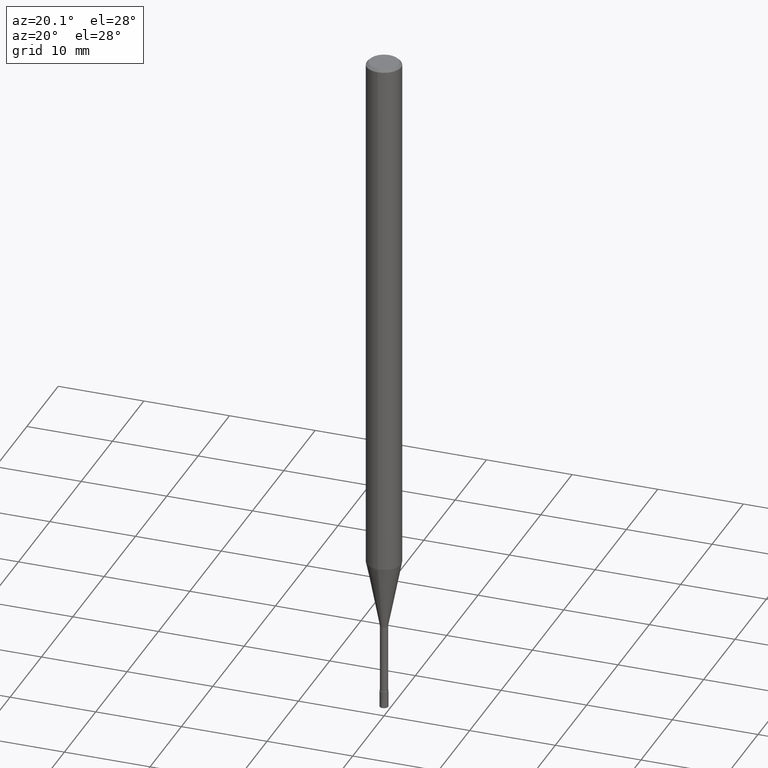
[diagram: clean part render]
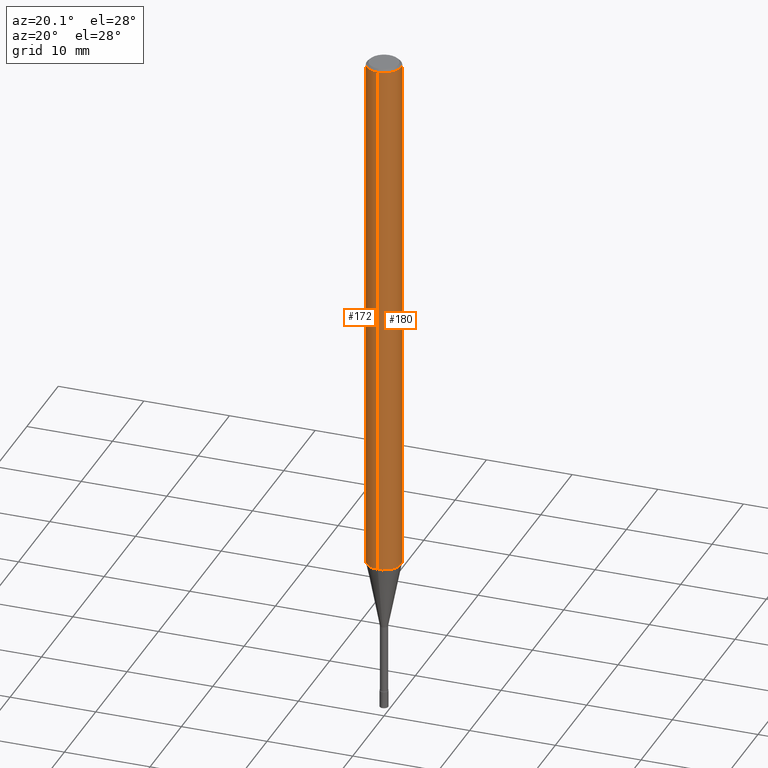
[diagram: same view with one multi-face feature highlighted, each face labeled with its STEP entity id]
A machine part, auxiliary view. The highlighted faces form ONE feature: a constant-radius fillet chain: 2 tangent blend faces with common blend radius 2 mm. The faces share edges in the B-rep.
Their STEP definitions:
[1] entity #180 (Cylinder):
#138=VERTEX_POINT('',#283);
#146=VERTEX_POINT('',#292);
#148=VERTEX_POINT('',#294);
#154=EDGE_CURVE('',#148,#138,#301,.T.);
#162=EDGE_CURVE('',#146,#148,#310,.T.);
#166=EDGE_CURVE('',#138,#182,#314,.T.);
#180=ADVANCED_FACE('',(#331),#332,.T.);
#182=VERTEX_POINT('',#334);
#198=EDGE_CURVE('',#146,#182,#351,.T.);
#283=CARTESIAN_POINT('',(2.44921270764475E-016,-2.0,-62.026));
#292=CARTESIAN_POINT('',(0.0,2.0,-0.299999999999997));
#294=CARTESIAN_POINT('',(0.0,2.0,-62.026));
#301=CIRCLE('',#464,2.0);
#310=LINE('',#476,#477);
#314=LINE('',#482,#483);
#331=FACE_OUTER_BOUND('',#502,.T.);
#332=CYLINDRICAL_SURFACE('',#503,2.0);
#334=CARTESIAN_POINT('',(2.44921270764475E-016,-2.0,-0.299999999999997));
#351=CIRCLE('',#530,2.0);
#464=AXIS2_PLACEMENT_3D('',#640,#641,#642);
#476=CARTESIAN_POINT('',(-2.44921270764475E-016,2.0,-31.163));
#477=VECTOR('',#652,1.0);
#482=CARTESIAN_POINT('',(2.44921270764475E-016,-2.0,-31.163));
#483=VECTOR('',#653,1.0);
#502=EDGE_LOOP('',(#681,#682,#683,#684));
#503=AXIS2_PLACEMENT_3D('',#685,#686,#687);
#530=AXIS2_PLACEMENT_3D('',#707,#708,#709);
#640=CARTESIAN_POINT('',(0.0,0.0,-62.026));
#641=DIRECTION('',(0.0,0.0,-1.0));
#642=DIRECTION('',(0.0,1.0,0.0));
#652=DIRECTION('',(0.0,0.0,-1.0));
#653=DIRECTION('',(-0.0,-0.0,1.0));
#681=ORIENTED_EDGE('',*,*,#162,.F.);
#682=ORIENTED_EDGE('',*,*,#198,.T.);
#683=ORIENTED_EDGE('',*,*,#166,.F.);
#684=ORIENTED_EDGE('',*,*,#154,.F.);
#685=CARTESIAN_POINT('',(0.0,0.0,-31.163));
#686=DIRECTION('',(-0.0,-0.0,1.0));
#687=DIRECTION('',(0.0,1.0,0.0));
#707=CARTESIAN_POINT('',(0.0,0.0,-0.299999999999997));
#708=DIRECTION('',(0.0,0.0,-1.0));
#709=DIRECTION('',(0.0,1.0,0.0));
[2] entity #172 (Cylinder):
#128=EDGE_CURVE('',#182,#146,#272,.T.);
#138=VERTEX_POINT('',#283);
#146=VERTEX_POINT('',#292);
#148=VERTEX_POINT('',#294);
#162=EDGE_CURVE('',#146,#148,#310,.T.);
#166=EDGE_CURVE('',#138,#182,#314,.T.);
#172=ADVANCED_FACE('',(#321),#322,.T.);
#182=VERTEX_POINT('',#334);
#188=EDGE_CURVE('',#138,#148,#340,.T.);
#272=CIRCLE('',#427,2.0);
#283=CARTESIAN_POINT('',(2.44921270764475E-016,-2.0,-62.026));
#292=CARTESIAN_POINT('',(0.0,2.0,-0.299999999999997));
#294=CARTESIAN_POINT('',(0.0,2.0,-62.026));
#310=LINE('',#476,#477);
#314=LINE('',#482,#483);
#321=FACE_OUTER_BOUND('',#491,.T.);
#322=CYLINDRICAL_SURFACE('',#492,2.0);
#334=CARTESIAN_POINT('',(2.44921270764475E-016,-2.0,-0.299999999999997));
#340=CIRCLE('',#513,2.0);
#427=AXIS2_PLACEMENT_3D('',#604,#605,#606);
#476=CARTESIAN_POINT('',(-2.44921270764475E-016,2.0,-31.163));
#477=VECTOR('',#652,1.0);
#482=CARTESIAN_POINT('',(2.44921270764475E-016,-2.0,-31.163));
#483=VECTOR('',#653,1.0);
#491=EDGE_LOOP('',(#664,#665,#666,#667));
#492=AXIS2_PLACEMENT_3D('',#668,#669,#670);
#513=AXIS2_PLACEMENT_3D('',#691,#692,#693);
#604=CARTESIAN_POINT('',(0.0,0.0,-0.299999999999997));
#605=DIRECTION('',(0.0,0.0,-1.0));
#606=DIRECTION('',(0.0,1.0,0.0));
#652=DIRECTION('',(0.0,0.0,-1.0));
#653=DIRECTION('',(-0.0,-0.0,1.0));
#664=ORIENTED_EDGE('',*,*,#162,.T.);
#665=ORIENTED_EDGE('',*,*,#188,.F.);
#666=ORIENTED_EDGE('',*,*,#166,.T.);
#667=ORIENTED_EDGE('',*,*,#128,.T.);
#668=CARTESIAN_POINT('',(0.0,0.0,-31.163));
#669=DIRECTION('',(-0.0,-0.0,1.0));
#670=DIRECTION('',(0.0,1.0,0.0));
#691=CARTESIAN_POINT('',(0.0,0.0,-62.026));
#692=DIRECTION('',(0.0,0.0,-1.0));
#693=DIRECTION('',(0.0,1.0,0.0));